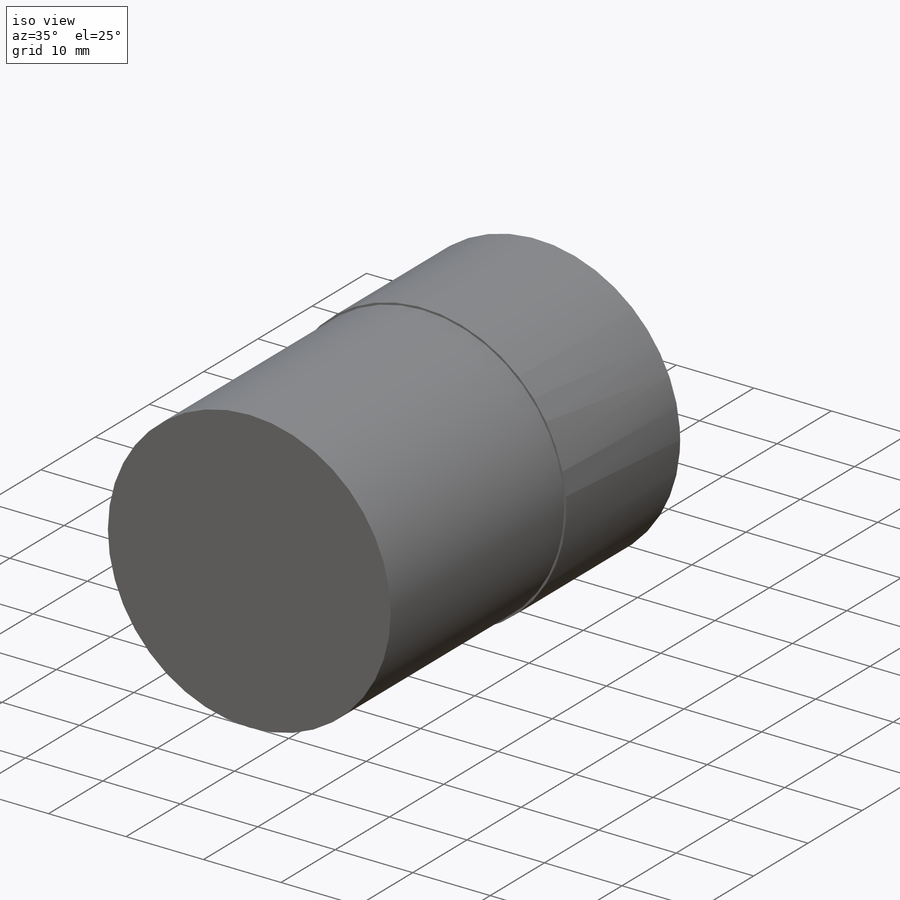
[diagram: iso view]
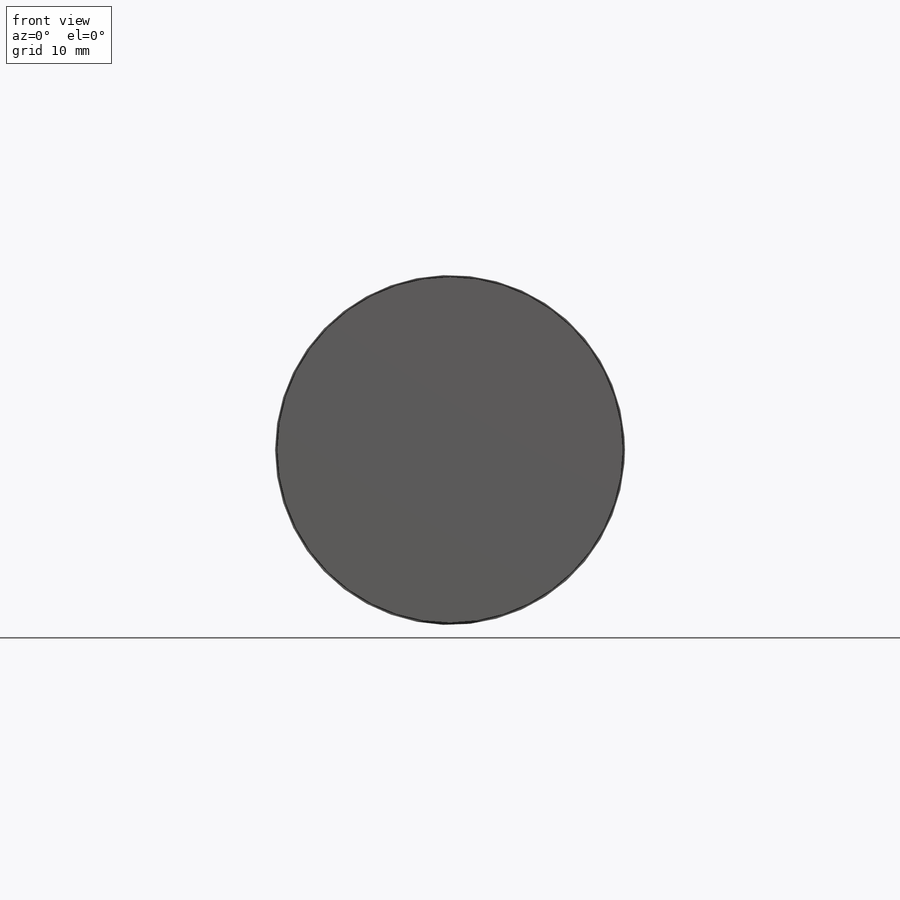
[diagram: front view]
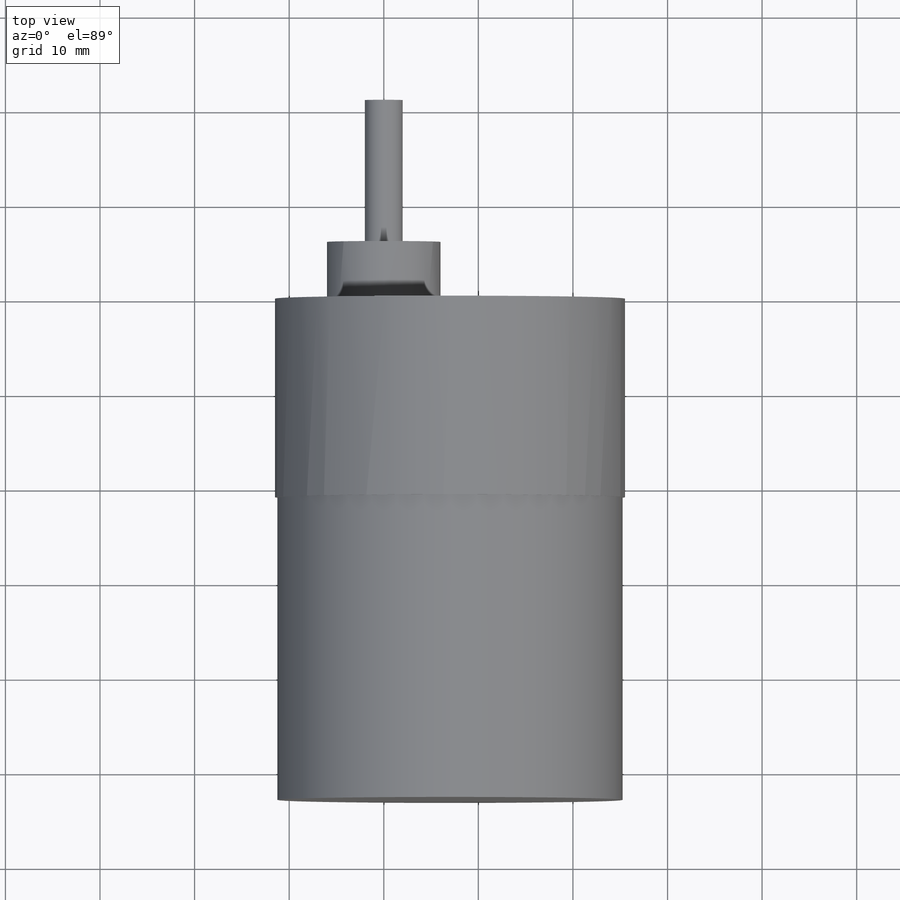
[diagram: top view]
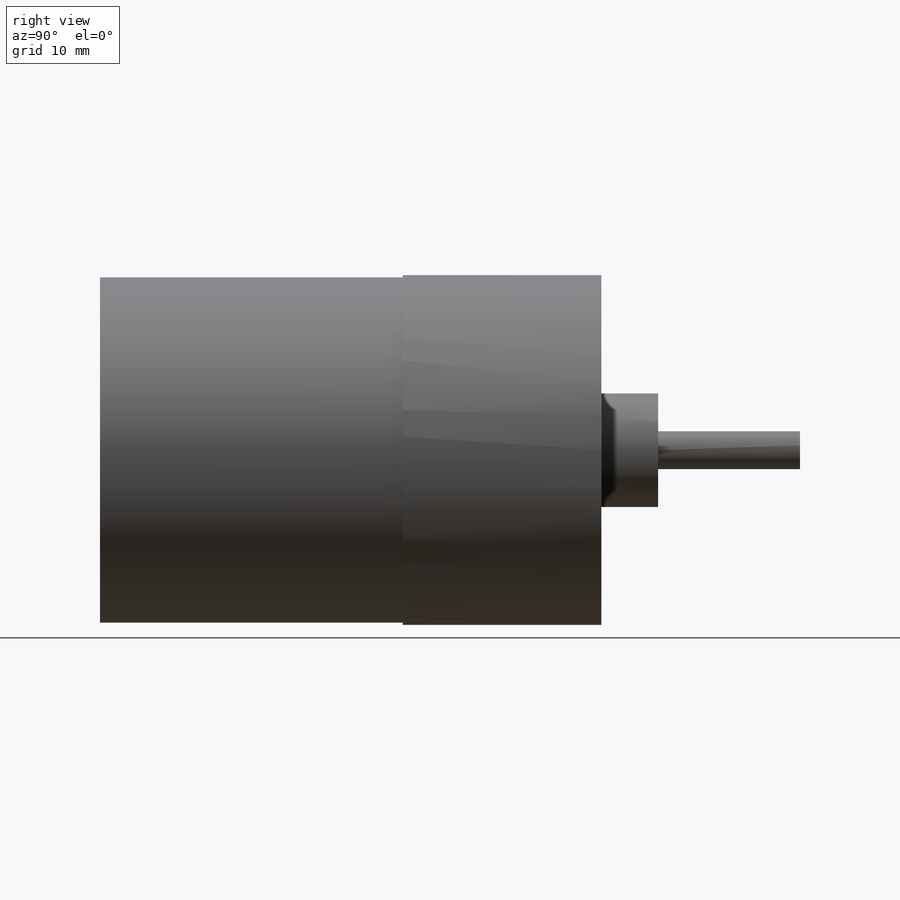
[diagram: right view]
SOLIDWORKS PART (.sldprt)
format: sldprt  version: not decoded by parser v0  size: 204,288 bytes
history: native  units: mm
features: sketch x4, extrude x4, plane x3, material x1 (+10 scaffold rows collapsed)
feature tree (22):
  scaffold x10  (default folders/planes/origin — collapsed)
  material  "Material <não especificado>"
  plane  "Plano frontal"
  plane  "Plano superior"
  plane  "Plano direito"
  sketch  "Model"  dims[c1.D2=2.5mm c1.D3=12.0mm c1.D4=2.5mm c1.D16=2.5mm c1.D17=2.5mm c1.D18=2.5mm c1.D19=2.5mm c1.D20=2.5mm c1.D21=2.5mm c1.D22=33.86mm c1.D23=37.0mm c1.D1=9.842mm c2.D4=6.771mm c2.D5=9.842mm c2.D6=6.771mm c2.D7=16.95mm c2.D8=16.95mm c2.D9=20.777mm c2.D10=9.842mm c2.D11=7.003mm c2.D12=7.003mm c2.D13=20.777mm c2.D14=9.842mm c2.D15=23.953mm c2.D22=~33.857823mm c2.D24=7.003mm]
  extrude  "Ressalto-extrusão1"  Depth=21mm
  sketch  "Esboço2"  dims[D1=36.5mm]
  extrude  "Ressalto-extrusão5"  Depth=32mm
  sketch  "Esboço3"
  extrude  "Ressalto-extrusão6"  Depth=27mm
  sketch  "Esboço4"  dims[D1=4.0mm]
  extrude  "Ressalto-extrusão7"  Depth=15mm
decode coverage: 7 of 8 modeling features carry decoded parameters
note: ~ marks probable driven/reference dimensions
note: suppression state not decoded; provenance and decode notes live in map.json
